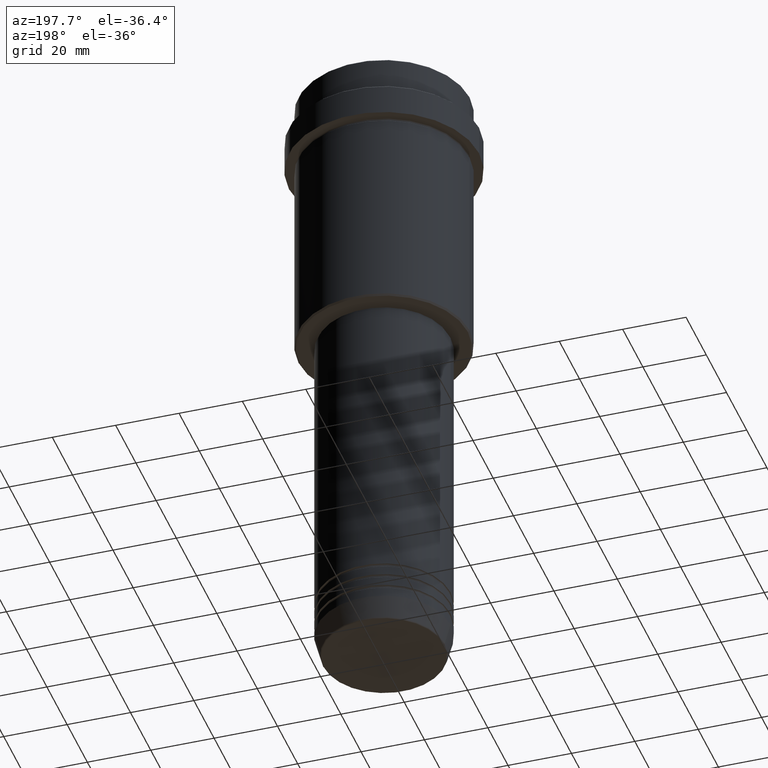
[diagram: clean part render]
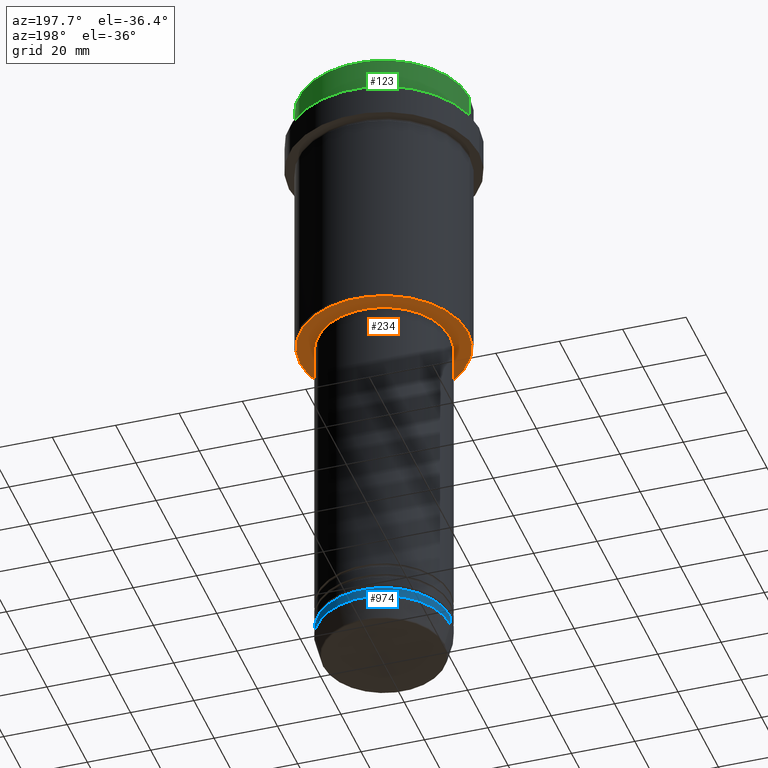
[diagram: same view with three faces highlighted in distinct colors, each labeled with its STEP entity id]
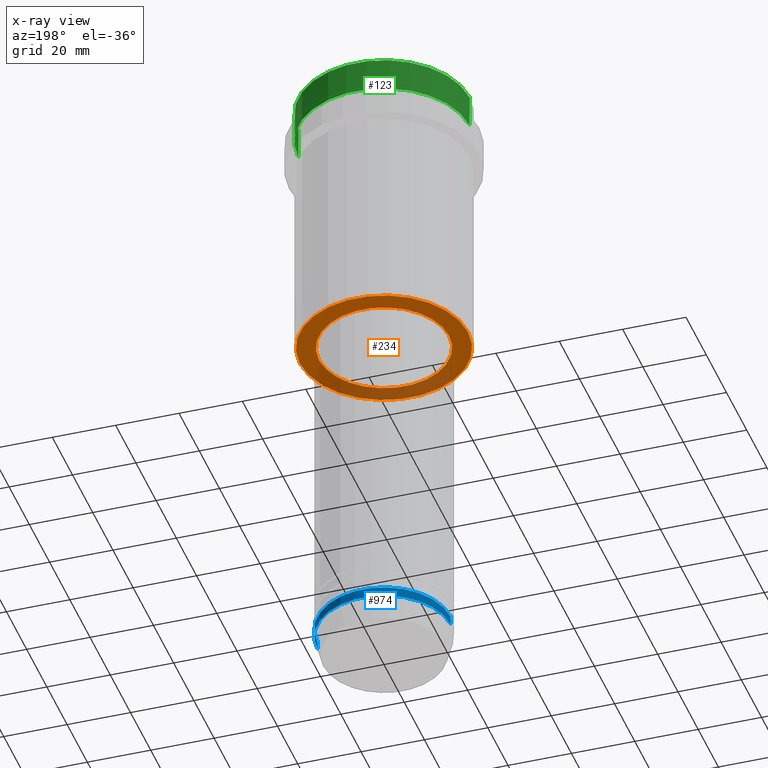
[diagram: x-ray of the same camera — body ghosted, the three highlighted faces saturated]
A machine part, auxiliary view with three faces highlighted in distinct colors.
The next image is the same camera in x-ray (body ghosted, the three faces saturated) — at least one of them is partly hidden behind the body in this view.
Their STEP definitions:

[orange] entity #234 — the highlighted planar face has unit normal (0, 0, -1).
#34 = AXIS2_PLACEMENT_3D ( 'NONE', #1348, #477, #1267 ) ;
#43 = FACE_OUTER_BOUND ( 'NONE', #577, .T. ) ;
#49 = FACE_BOUND ( 'NONE', #309, .T. ) ;
#79 = EDGE_CURVE ( 'NONE', #684, #405, #314, .T. ) ;
#89 = CARTESIAN_POINT ( 'NONE',  ( 0.000000000000000000, 0.000000000000000000, -88.00000000000001421 ) ) ;
#144 = CIRCLE ( 'NONE', #637, 20.50000000000000000 ) ;
#170 = CARTESIAN_POINT ( 'NONE',  ( -26.49999999999993960, 3.275930187719166002E-15, -88.00000000000001421 ) ) ;
#185 = DIRECTION ( 'NONE',  ( 0.000000000000000000, 0.000000000000000000, -1.000000000000000000 ) ) ;
#234 = ADVANCED_FACE ( 'NONE', ( #43, #49 ), #1235, .T. ) ;
#309 = EDGE_LOOP ( 'NONE', ( #557, #735 ) ) ;
#314 = CIRCLE ( 'NONE', #550, 20.50000000000000000 ) ;
#323 = CARTESIAN_POINT ( 'NONE',  ( 0.000000000000000000, 0.000000000000000000, -88.00000000000001421 ) ) ;
#333 = AXIS2_PLACEMENT_3D ( 'NONE', #983, #872, #912 ) ;
#405 = VERTEX_POINT ( 'NONE', #859 ) ;
#445 = DIRECTION ( 'NONE',  ( -0.000000000000000000, -0.000000000000000000, 1.000000000000000000 ) ) ;
#470 = CIRCLE ( 'NONE', #1266, 26.49999999999993960 ) ;
#477 = DIRECTION ( 'NONE',  ( 0.000000000000000000, 0.000000000000000000, -1.000000000000000000 ) ) ;
#550 = AXIS2_PLACEMENT_3D ( 'NONE', #323, #1312, #1336 ) ;
#557 = ORIENTED_EDGE ( 'NONE', *, *, #647, .T. ) ;
#577 = EDGE_LOOP ( 'NONE', ( #1272, #839 ) ) ;
#637 = AXIS2_PLACEMENT_3D ( 'NONE', #1076, #445, #1406 ) ;
#647 = EDGE_CURVE ( 'NONE', #405, #684, #144, .T. ) ;
#663 = CIRCLE ( 'NONE', #333, 26.49999999999993960 ) ;
#673 = EDGE_CURVE ( 'NONE', #1056, #758, #663, .T. ) ;
#684 = VERTEX_POINT ( 'NONE', #1299 ) ;
#735 = ORIENTED_EDGE ( 'NONE', *, *, #79, .T. ) ;
#744 = DIRECTION ( 'NONE',  ( -1.000000000000000000, 0.000000000000000000, 0.000000000000000000 ) ) ;
#758 = VERTEX_POINT ( 'NONE', #170 ) ;
#839 = ORIENTED_EDGE ( 'NONE', *, *, #893, .T. ) ;
#859 = CARTESIAN_POINT ( 'NONE',  ( 20.50000000000000000, 0.000000000000000000, -88.00000000000001421 ) ) ;
#872 = DIRECTION ( 'NONE',  ( 0.000000000000000000, 0.000000000000000000, -1.000000000000000000 ) ) ;
#893 = EDGE_CURVE ( 'NONE', #758, #1056, #470, .T. ) ;
#912 = DIRECTION ( 'NONE',  ( -1.000000000000000000, 0.000000000000000000, 0.000000000000000000 ) ) ;
#983 = CARTESIAN_POINT ( 'NONE',  ( 0.000000000000000000, 0.000000000000000000, -88.00000000000001421 ) ) ;
#1056 = VERTEX_POINT ( 'NONE', #1117 ) ;
#1076 = CARTESIAN_POINT ( 'NONE',  ( 0.000000000000000000, 0.000000000000000000, -88.00000000000001421 ) ) ;
#1117 = CARTESIAN_POINT ( 'NONE',  ( 26.49999999999993960, 0.000000000000000000, -88.00000000000001421 ) ) ;
#1235 = PLANE ( 'NONE',  #34 ) ;
#1266 = AXIS2_PLACEMENT_3D ( 'NONE', #89, #185, #744 ) ;
#1267 = DIRECTION ( 'NONE',  ( -1.000000000000000000, 0.000000000000000000, -0.000000000000000000 ) ) ;
#1272 = ORIENTED_EDGE ( 'NONE', *, *, #673, .T. ) ;
#1299 = CARTESIAN_POINT ( 'NONE',  ( -20.50000000000000000, 2.510525938252074481E-15, -88.00000000000001421 ) ) ;
#1312 = DIRECTION ( 'NONE',  ( -0.000000000000000000, -0.000000000000000000, 1.000000000000000000 ) ) ;
#1336 = DIRECTION ( 'NONE',  ( 1.000000000000000000, 0.000000000000000000, 0.000000000000000000 ) ) ;
#1348 = CARTESIAN_POINT ( 'NONE',  ( 0.000000000000000000, 27.00000000000000000, -88.00000000000001421 ) ) ;
#1406 = DIRECTION ( 'NONE',  ( 1.000000000000000000, 0.000000000000000000, 0.000000000000000000 ) ) ;

[blue] entity #974 — the highlighted cylindrical surface (partial cylindrical patch) has radius 21 mm, axis along (-0, -0, 1).
#26 = VERTEX_POINT ( 'NONE', #847 ) ;
#50 = VERTEX_POINT ( 'NONE', #1300 ) ;
#56 = CIRCLE ( 'NONE', #520, 21.00000000000000000 ) ;
#78 = DIRECTION ( 'NONE',  ( -0.000000000000000000, -0.000000000000000000, 1.000000000000000000 ) ) ;
#203 = CYLINDRICAL_SURFACE ( 'NONE', #792, 21.00000000000000000 ) ;
#221 = CIRCLE ( 'NONE', #525, 21.00000000000000000 ) ;
#308 = DIRECTION ( 'NONE',  ( 1.000000000000000000, 0.000000000000000000, 0.000000000000000000 ) ) ;
#326 = DIRECTION ( 'NONE',  ( -0.000000000000000000, -0.000000000000000000, 1.000000000000000000 ) ) ;
#369 = DIRECTION ( 'NONE',  ( 1.000000000000000000, 0.000000000000000000, 0.000000000000000000 ) ) ;
#417 = CARTESIAN_POINT ( 'NONE',  ( -21.00000000000000000, 2.571758278209441661E-15, 0.000000000000000000 ) ) ;
#500 = EDGE_CURVE ( 'NONE', #1373, #26, #1031, .T. ) ;
#520 = AXIS2_PLACEMENT_3D ( 'NONE', #915, #1019, #369 ) ;
#525 = AXIS2_PLACEMENT_3D ( 'NONE', #1285, #78, #308 ) ;
#530 = ORIENTED_EDGE ( 'NONE', *, *, #1129, .T. ) ;
#661 = ORIENTED_EDGE ( 'NONE', *, *, #500, .F. ) ;
#751 = CARTESIAN_POINT ( 'NONE',  ( 21.00000000000000000, 0.000000000000000000, -196.0000000000000000 ) ) ;
#767 = DIRECTION ( 'NONE',  ( 1.000000000000000000, 0.000000000000000000, 0.000000000000000000 ) ) ;
#792 = AXIS2_PLACEMENT_3D ( 'NONE', #1303, #326, #767 ) ;
#840 = ORIENTED_EDGE ( 'NONE', *, *, #1366, .F. ) ;
#847 = CARTESIAN_POINT ( 'NONE',  ( 21.00000000000000000, 0.000000000000000000, -193.0000000000000000 ) ) ;
#857 = LINE ( 'NONE', #417, #950 ) ;
#910 = EDGE_CURVE ( 'NONE', #980, #50, #857, .T. ) ;
#915 = CARTESIAN_POINT ( 'NONE',  ( 0.000000000000000000, 0.000000000000000000, -196.0000000000000000 ) ) ;
#950 = VECTOR ( 'NONE', #986, 1000.000000000000000 ) ;
#974 = ADVANCED_FACE ( 'NONE', ( #1287 ), #203, .T. ) ;
#980 = VERTEX_POINT ( 'NONE', #1193 ) ;
#986 = DIRECTION ( 'NONE',  ( -0.000000000000000000, -0.000000000000000000, 1.000000000000000000 ) ) ;
#1011 = VECTOR ( 'NONE', #1125, 1000.000000000000000 ) ;
#1019 = DIRECTION ( 'NONE',  ( -0.000000000000000000, -0.000000000000000000, 1.000000000000000000 ) ) ;
#1031 = LINE ( 'NONE', #1132, #1011 ) ;
#1125 = DIRECTION ( 'NONE',  ( -0.000000000000000000, -0.000000000000000000, 1.000000000000000000 ) ) ;
#1129 = EDGE_CURVE ( 'NONE', #1373, #980, #56, .T. ) ;
#1132 = CARTESIAN_POINT ( 'NONE',  ( 21.00000000000000000, 0.000000000000000000, 0.000000000000000000 ) ) ;
#1193 = CARTESIAN_POINT ( 'NONE',  ( -21.00000000000000000, 2.571758278209441661E-15, -196.0000000000000000 ) ) ;
#1285 = CARTESIAN_POINT ( 'NONE',  ( 0.000000000000000000, 0.000000000000000000, -193.0000000000000000 ) ) ;
#1287 = FACE_OUTER_BOUND ( 'NONE', #1374, .T. ) ;
#1300 = CARTESIAN_POINT ( 'NONE',  ( -21.00000000000000000, 2.571758278209441661E-15, -193.0000000000000000 ) ) ;
#1303 = CARTESIAN_POINT ( 'NONE',  ( 0.000000000000000000, 0.000000000000000000, 0.000000000000000000 ) ) ;
#1366 = EDGE_CURVE ( 'NONE', #26, #50, #221, .T. ) ;
#1373 = VERTEX_POINT ( 'NONE', #751 ) ;
#1374 = EDGE_LOOP ( 'NONE', ( #530, #1405, #840, #661 ) ) ;
#1405 = ORIENTED_EDGE ( 'NONE', *, *, #910, .T. ) ;

[green] entity #123 — the highlighted cylindrical surface (partial cylindrical patch) has radius 27 mm, axis along (-0, -0, 1).
#19 = ORIENTED_EDGE ( 'NONE', *, *, #833, .T. ) ;
#30 = CIRCLE ( 'NONE', #1012, 26.99999999999999645 ) ;
#35 = CARTESIAN_POINT ( 'NONE',  ( 26.99999999999999645, 0.000000000000000000, -0.5000000000000038858 ) ) ;
#64 = DIRECTION ( 'NONE',  ( -0.000000000000000000, -0.000000000000000000, 1.000000000000000000 ) ) ;
#74 = DIRECTION ( 'NONE',  ( -0.000000000000000000, -0.000000000000000000, 1.000000000000000000 ) ) ;
#122 = CARTESIAN_POINT ( 'NONE',  ( -26.99999999999999645, 3.306546357697853339E-15, -11.00000000000000178 ) ) ;
#123 = ADVANCED_FACE ( 'NONE', ( #658 ), #1230, .T. ) ;
#135 = CARTESIAN_POINT ( 'NONE',  ( 0.000000000000000000, 0.000000000000000000, 0.000000000000000000 ) ) ;
#250 = DIRECTION ( 'NONE',  ( 1.000000000000000000, 0.000000000000000000, 0.000000000000000000 ) ) ;
#287 = DIRECTION ( 'NONE',  ( 1.000000000000000000, 0.000000000000000000, 0.000000000000000000 ) ) ;
#329 = DIRECTION ( 'NONE',  ( -0.000000000000000000, -0.000000000000000000, 1.000000000000000000 ) ) ;
#352 = VECTOR ( 'NONE', #64, 1000.000000000000000 ) ;
#398 = ORIENTED_EDGE ( 'NONE', *, *, #749, .T. ) ;
#406 = ORIENTED_EDGE ( 'NONE', *, *, #1166, .F. ) ;
#457 = VERTEX_POINT ( 'NONE', #35 ) ;
#494 = LINE ( 'NONE', #933, #777 ) ;
#548 = AXIS2_PLACEMENT_3D ( 'NONE', #596, #74, #287 ) ;
#565 = VERTEX_POINT ( 'NONE', #717 ) ;
#596 = CARTESIAN_POINT ( 'NONE',  ( 0.000000000000000000, 0.000000000000000000, -11.00000000000000178 ) ) ;
#658 = FACE_OUTER_BOUND ( 'NONE', #1101, .T. ) ;
#685 = CARTESIAN_POINT ( 'NONE',  ( -26.99999999999999645, 3.306546357697853339E-15, -0.5000000000000038858 ) ) ;
#717 = CARTESIAN_POINT ( 'NONE',  ( 26.99999999999999645, 0.000000000000000000, -11.00000000000000178 ) ) ;
#725 = LINE ( 'NONE', #1339, #352 ) ;
#749 = EDGE_CURVE ( 'NONE', #1109, #457, #30, .T. ) ;
#752 = CIRCLE ( 'NONE', #548, 26.99999999999999645 ) ;
#777 = VECTOR ( 'NONE', #1154, 1000.000000000000000 ) ;
#833 = EDGE_CURVE ( 'NONE', #565, #1072, #752, .T. ) ;
#933 = CARTESIAN_POINT ( 'NONE',  ( -26.99999999999999645, 3.306546357697853339E-15, 0.000000000000000000 ) ) ;
#947 = DIRECTION ( 'NONE',  ( 0.000000000000000000, 0.000000000000000000, -1.000000000000000000 ) ) ;
#1012 = AXIS2_PLACEMENT_3D ( 'NONE', #1251, #947, #1133 ) ;
#1017 = AXIS2_PLACEMENT_3D ( 'NONE', #135, #329, #250 ) ;
#1072 = VERTEX_POINT ( 'NONE', #122 ) ;
#1101 = EDGE_LOOP ( 'NONE', ( #19, #1283, #398, #406 ) ) ;
#1109 = VERTEX_POINT ( 'NONE', #685 ) ;
#1133 = DIRECTION ( 'NONE',  ( 1.000000000000000000, 0.000000000000000000, 0.000000000000000000 ) ) ;
#1154 = DIRECTION ( 'NONE',  ( -0.000000000000000000, -0.000000000000000000, 1.000000000000000000 ) ) ;
#1166 = EDGE_CURVE ( 'NONE', #565, #457, #725, .T. ) ;
#1230 = CYLINDRICAL_SURFACE ( 'NONE', #1017, 26.99999999999999645 ) ;
#1236 = EDGE_CURVE ( 'NONE', #1072, #1109, #494, .T. ) ;
#1251 = CARTESIAN_POINT ( 'NONE',  ( 0.000000000000000000, 0.000000000000000000, -0.5000000000000038858 ) ) ;
#1283 = ORIENTED_EDGE ( 'NONE', *, *, #1236, .T. ) ;
#1339 = CARTESIAN_POINT ( 'NONE',  ( 26.99999999999999645, 0.000000000000000000, 0.000000000000000000 ) ) ;